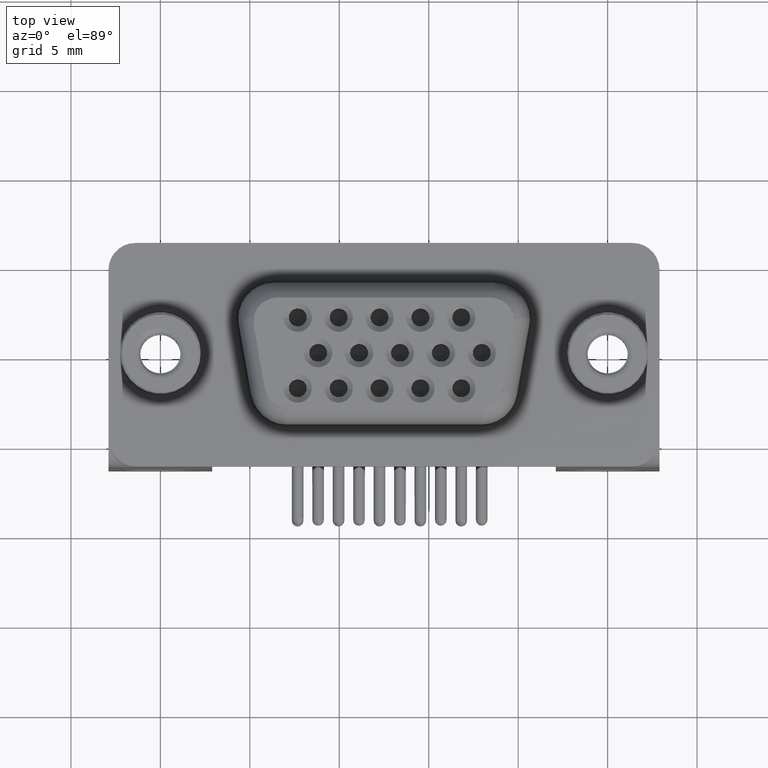
[diagram: clean part render]
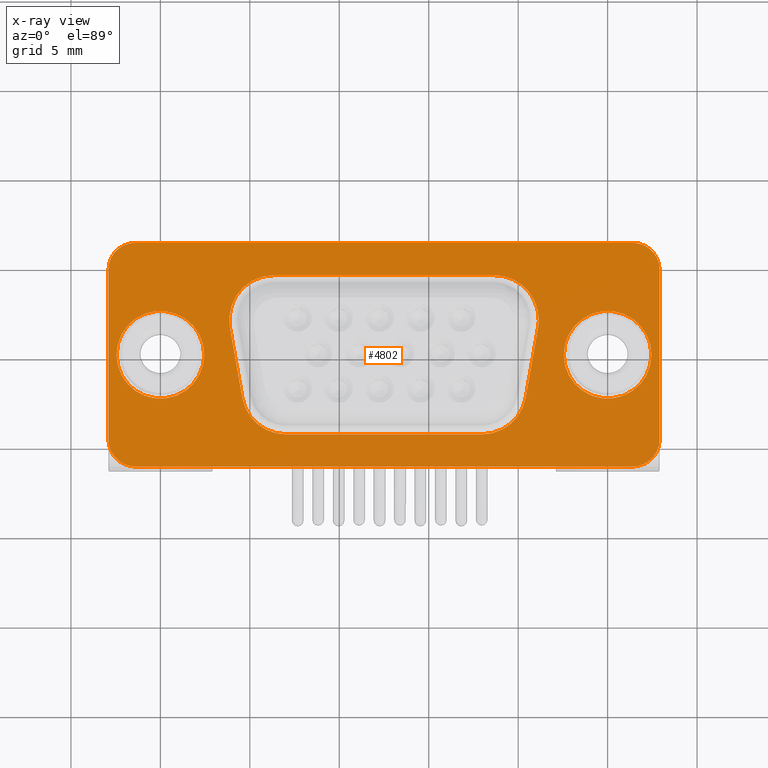
[diagram: x-ray — body ghosted, one internal face saturated and labeled with its STEP entity id]
A machine part, top view, then the same camera in x-ray: the body is ghosted and one INTERNAL B-rep face — a face not visible from any outside direction — is saturated and labeled: STEP entity #4802.
In plain terms, the highlighted planar face has unit normal (0, 0, 1).
Its self-contained STEP definition (entity closure, byte-faithful):
#76 = VECTOR ( 'NONE', #19279, 1000.000000000000100 ) ;
#106 = DIRECTION ( 'NONE',  ( -0.0000000000000000000, -0.0000000000000000000, -1.000000000000000000 ) ) ;
#285 = CARTESIAN_POINT ( 'NONE',  ( 18.64999999999999100, 1.949999999999997700, -2.168404344971008900E-016 ) ) ;
#362 = EDGE_LOOP ( 'NONE', ( #1427, #2293 ) ) ;
#383 = EDGE_CURVE ( 'NONE', #9309, #19498, #17519, .T. ) ;
#435 = VECTOR ( 'NONE', #12010, 1000.000000000000000 ) ;
#486 = DIRECTION ( 'NONE',  ( 1.000000000000000000, 0.0000000000000000000, 0.0000000000000000000 ) ) ;
#509 = EDGE_CURVE ( 'NONE', #4650, #7100, #1769, .T. ) ;
#690 = AXIS2_PLACEMENT_3D ( 'NONE', #18150, #18005, #17842 ) ;
#988 = DIRECTION ( 'NONE',  ( -0.1736481776669233100, -0.9848077530122093500, 0.0000000000000000000 ) ) ;
#1072 = CARTESIAN_POINT ( 'NONE',  ( 3.887980617469470400, 1.515879555832688700, 0.0000000000000000000 ) ) ;
#1213 = EDGE_CURVE ( 'NONE', #12095, #21476, #18872, .T. ) ;
#1427 = ORIENTED_EDGE ( 'NONE', *, *, #15687, .F. ) ;
#1769 = CIRCLE ( 'NONE', #16362, 1.500000000000004900 ) ;
#1777 = CIRCLE ( 'NONE', #4881, 1.499999999999997800 ) ;
#1801 = CARTESIAN_POINT ( 'NONE',  ( -1.400000000000012100, -6.250000000000002700, 0.0000000000000000000 ) ) ;
#1901 = ORIENTED_EDGE ( 'NONE', *, *, #10187, .F. ) ;
#2185 = ORIENTED_EDGE ( 'NONE', *, *, #12012, .F. ) ;
#2293 = ORIENTED_EDGE ( 'NONE', *, *, #20089, .F. ) ;
#2360 = VERTEX_POINT ( 'NONE', #12873 ) ;
#2370 = CARTESIAN_POINT ( 'NONE',  ( 0.0000000000000000000, 0.0000000000000000000, 0.0000000000000000000 ) ) ;
#2533 = DIRECTION ( 'NONE',  ( 1.000000000000000000, 0.0000000000000000000, -0.0000000000000000000 ) ) ;
#2632 = CARTESIAN_POINT ( 'NONE',  ( -1.400000000000012300, 4.750000000000000900, 0.0000000000000000000 ) ) ;
#2678 = EDGE_CURVE ( 'NONE', #20590, #2360, #20074, .T. ) ;
#2681 = DIRECTION ( 'NONE',  ( -0.0000000000000000000, -0.0000000000000000000, -1.000000000000000000 ) ) ;
#2760 = DIRECTION ( 'NONE',  ( 0.0000000000000000000, 0.0000000000000000000, 1.000000000000000000 ) ) ;
#2798 = EDGE_LOOP ( 'NONE', ( #9909, #5777, #12975, #15372, #1901, #7375, #21812, #14042 ) ) ;
#3211 = VERTEX_POINT ( 'NONE', #1072 ) ;
#3217 = VERTEX_POINT ( 'NONE', #4678 ) ;
#3331 = CIRCLE ( 'NONE', #13359, 2.499999999999998700 ) ;
#3720 = CARTESIAN_POINT ( 'NONE',  ( 26.39999999999999900, 6.250000000000002700, 0.0000000000000000000 ) ) ;
#3843 = AXIS2_PLACEMENT_3D ( 'NONE', #16599, #6016, #18360 ) ;
#3994 = VECTOR ( 'NONE', #18682, 1000.000000000000000 ) ;
#3997 = FACE_BOUND ( 'NONE', #17601, .T. ) ;
#4154 = EDGE_CURVE ( 'NONE', #15378, #4363, #6237, .T. ) ;
#4165 = DIRECTION ( 'NONE',  ( 1.000000000000000000, 0.0000000000000000000, 0.0000000000000000000 ) ) ;
#4303 = EDGE_CURVE ( 'NONE', #7100, #12894, #8162, .T. ) ;
#4329 = EDGE_CURVE ( 'NONE', #12894, #9309, #7044, .T. ) ;
#4363 = VERTEX_POINT ( 'NONE', #14171 ) ;
#4405 = CARTESIAN_POINT ( 'NONE',  ( 17.96232477523700800, -1.950000000000002800, -2.168404344971008900E-016 ) ) ;
#4426 = DIRECTION ( 'NONE',  ( 1.000000000000000000, 0.0000000000000000000, 0.0000000000000000000 ) ) ;
#4579 = FACE_OUTER_BOUND ( 'NONE', #2798, .T. ) ;
#4650 = VERTEX_POINT ( 'NONE', #9618 ) ;
#4678 = CARTESIAN_POINT ( 'NONE',  ( 6.349999999999990800, 4.449999999999997500, 0.0000000000000000000 ) ) ;
#4765 = LINE ( 'NONE', #5730, #8878 ) ;
#4802 = ADVANCED_FACE ( 'NONE', ( #18069, #3997, #4579, #17523 ), #5482, .F. ) ;
#4881 = AXIS2_PLACEMENT_3D ( 'NONE', #20733, #10150, #22510 ) ;
#4888 = CIRCLE ( 'NONE', #20833, 2.449999999999999700 ) ;
#4889 = CARTESIAN_POINT ( 'NONE',  ( 2.449999999999999700, 0.0000000000000000000, 0.0000000000000000000 ) ) ;
#4905 = EDGE_CURVE ( 'NONE', #3211, #3217, #11174, .T. ) ;
#5173 = CARTESIAN_POINT ( 'NONE',  ( 4.575655842232457400, -2.384120444167311600, -4.336808689942017700E-016 ) ) ;
#5482 = PLANE ( 'NONE',  #22724 ) ;
#5636 = ORIENTED_EDGE ( 'NONE', *, *, #2678, .F. ) ;
#5730 = CARTESIAN_POINT ( 'NONE',  ( 26.39999999999999900, -4.450000000000002800, 0.0000000000000000000 ) ) ;
#5777 = ORIENTED_EDGE ( 'NONE', *, *, #4303, .F. ) ;
#6016 = DIRECTION ( 'NONE',  ( -0.0000000000000000000, -0.0000000000000000000, -1.000000000000000000 ) ) ;
#6095 = CIRCLE ( 'NONE', #19039, 2.449999999999997500 ) ;
#6127 = DIRECTION ( 'NONE',  ( 1.000000000000000000, 0.0000000000000000000, -0.0000000000000000000 ) ) ;
#6165 = CARTESIAN_POINT ( 'NONE',  ( 4.575655842232455600, -2.384120444167311600, 0.0000000000000000000 ) ) ;
#6174 = DIRECTION ( 'NONE',  ( 1.000000000000000000, 8.673617379884040400E-016, 0.0000000000000000000 ) ) ;
#6237 = LINE ( 'NONE', #9880, #435 ) ;
#6731 = CARTESIAN_POINT ( 'NONE',  ( 27.44999999999999900, 4.592425496802575200E-015, 0.0000000000000000000 ) ) ;
#6971 = VERTEX_POINT ( 'NONE', #6731 ) ;
#7044 = CIRCLE ( 'NONE', #690, 1.499999999999997800 ) ;
#7100 = VERTEX_POINT ( 'NONE', #11918 ) ;
#7307 = LINE ( 'NONE', #11458, #21404 ) ;
#7375 = ORIENTED_EDGE ( 'NONE', *, *, #4154, .F. ) ;
#7592 = CARTESIAN_POINT ( 'NONE',  ( 20.42434415776753200, -2.384120444167311600, 0.0000000000000000000 ) ) ;
#7922 = VERTEX_POINT ( 'NONE', #1801 ) ;
#8070 = CARTESIAN_POINT ( 'NONE',  ( 7.037675224762979000, -1.950000000000002800, -2.168404344971008900E-016 ) ) ;
#8119 = DIRECTION ( 'NONE',  ( -0.0000000000000000000, -0.0000000000000000000, -1.000000000000000000 ) ) ;
#8162 = LINE ( 'NONE', #9525, #17012 ) ;
#8247 = CARTESIAN_POINT ( 'NONE',  ( 22.55000000000000400, 4.892463962593676000E-015, 0.0000000000000000000 ) ) ;
#8357 = ORIENTED_EDGE ( 'NONE', *, *, #17035, .F. ) ;
#8878 = VECTOR ( 'NONE', #18068, 1000.000000000000000 ) ;
#8924 = CARTESIAN_POINT ( 'NONE',  ( 26.39999999999999900, 4.750000000000004400, 0.0000000000000000000 ) ) ;
#9249 = LINE ( 'NONE', #21104, #22239 ) ;
#9309 = VERTEX_POINT ( 'NONE', #3720 ) ;
#9425 = CIRCLE ( 'NONE', #21555, 2.449999999999999700 ) ;
#9525 = CARTESIAN_POINT ( 'NONE',  ( 27.89999999999999500, -4.749999999999998200, 0.0000000000000000000 ) ) ;
#9530 = EDGE_CURVE ( 'NONE', #19498, #15378, #16450, .T. ) ;
#9618 = CARTESIAN_POINT ( 'NONE',  ( 26.39999999999998400, -6.250000000000001800, 0.0000000000000000000 ) ) ;
#9880 = CARTESIAN_POINT ( 'NONE',  ( -2.900000000000006600, -4.750000000000001800, 0.0000000000000000000 ) ) ;
#9909 = ORIENTED_EDGE ( 'NONE', *, *, #4329, .F. ) ;
#10150 = DIRECTION ( 'NONE',  ( 0.0000000000000000000, 0.0000000000000000000, 1.000000000000000000 ) ) ;
#10152 = ORIENTED_EDGE ( 'NONE', *, *, #1213, .F. ) ;
#10187 = EDGE_CURVE ( 'NONE', #4363, #7922, #1777, .T. ) ;
#10452 = AXIS2_PLACEMENT_3D ( 'NONE', #16786, #16717, #16473 ) ;
#10480 = ORIENTED_EDGE ( 'NONE', *, *, #13034, .F. ) ;
#10637 = CARTESIAN_POINT ( 'NONE',  ( 18.64999999999999100, 1.949999999999997700, -2.168404344971008900E-016 ) ) ;
#10882 = ORIENTED_EDGE ( 'NONE', *, *, #4905, .F. ) ;
#10924 = ORIENTED_EDGE ( 'NONE', *, *, #16423, .F. ) ;
#11030 = ORIENTED_EDGE ( 'NONE', *, *, #15680, .F. ) ;
#11054 = DIRECTION ( 'NONE',  ( -0.0000000000000000000, -0.0000000000000000000, -1.000000000000000000 ) ) ;
#11174 = CIRCLE ( 'NONE', #10452, 2.499999999999999600 ) ;
#11458 = CARTESIAN_POINT ( 'NONE',  ( 26.39999999999999900, 4.449999999999997500, 0.0000000000000000000 ) ) ;
#11918 = CARTESIAN_POINT ( 'NONE',  ( 27.89999999999999500, -4.749999999999998200, 0.0000000000000000000 ) ) ;
#12010 = DIRECTION ( 'NONE',  ( -0.0000000000000000000, -1.000000000000000000, -0.0000000000000000000 ) ) ;
#12012 = EDGE_CURVE ( 'NONE', #21476, #3211, #18834, .T. ) ;
#12095 = VERTEX_POINT ( 'NONE', #21283 ) ;
#12137 = CARTESIAN_POINT ( 'NONE',  ( 27.89999999999999500, 4.750000000000004400, 0.0000000000000000000 ) ) ;
#12323 = DIRECTION ( 'NONE',  ( 0.0000000000000000000, 1.000000000000000000, 0.0000000000000000000 ) ) ;
#12380 = DIRECTION ( 'NONE',  ( 1.000000000000000000, 1.560003125878423900E-016, -0.0000000000000000000 ) ) ;
#12440 = DIRECTION ( 'NONE',  ( 1.000000000000000000, 0.0000000000000000000, 0.0000000000000000000 ) ) ;
#12765 = DIRECTION ( 'NONE',  ( 0.0000000000000000000, 0.0000000000000000000, 1.000000000000000000 ) ) ;
#12873 = CARTESIAN_POINT ( 'NONE',  ( 21.11201938253051600, 1.515879555832688700, -2.168404344971008900E-016 ) ) ;
#12894 = VERTEX_POINT ( 'NONE', #12137 ) ;
#12975 = ORIENTED_EDGE ( 'NONE', *, *, #509, .F. ) ;
#13034 = EDGE_CURVE ( 'NONE', #17840, #20590, #3331, .T. ) ;
#13140 = CIRCLE ( 'NONE', #3843, 2.449999999999997500 ) ;
#13192 = CARTESIAN_POINT ( 'NONE',  ( 26.39999999999998400, -4.749999999999998200, 0.0000000000000000000 ) ) ;
#13247 = CARTESIAN_POINT ( 'NONE',  ( 25.00000000000000000, 4.592425496802575200E-015, 0.0000000000000000000 ) ) ;
#13359 = AXIS2_PLACEMENT_3D ( 'NONE', #10637, #106, #12440 ) ;
#13426 = ORIENTED_EDGE ( 'NONE', *, *, #20117, .F. ) ;
#13456 = VERTEX_POINT ( 'NONE', #8247 ) ;
#13946 = DIRECTION ( 'NONE',  ( 1.000000000000000000, 0.0000000000000000000, 0.0000000000000000000 ) ) ;
#14042 = ORIENTED_EDGE ( 'NONE', *, *, #383, .F. ) ;
#14171 = CARTESIAN_POINT ( 'NONE',  ( -2.900000000000010100, -4.750000000000001800, 0.0000000000000000000 ) ) ;
#14464 = AXIS2_PLACEMENT_3D ( 'NONE', #2632, #14998, #4426 ) ;
#14474 = CARTESIAN_POINT ( 'NONE',  ( 21.14999999999999100, 1.949999999999997700, -2.168404344971008900E-016 ) ) ;
#14663 = EDGE_LOOP ( 'NONE', ( #19875, #13426 ) ) ;
#14743 = DIRECTION ( 'NONE',  ( -0.0000000000000000000, -0.0000000000000000000, -1.000000000000000000 ) ) ;
#14872 = ORIENTED_EDGE ( 'NONE', *, *, #19840, .F. ) ;
#14912 = LINE ( 'NONE', #22155, #20137 ) ;
#14998 = DIRECTION ( 'NONE',  ( 0.0000000000000000000, 0.0000000000000000000, 1.000000000000000000 ) ) ;
#15050 = DIRECTION ( 'NONE',  ( 1.000000000000000000, 0.0000000000000000000, 0.0000000000000000000 ) ) ;
#15134 = VERTEX_POINT ( 'NONE', #7592 ) ;
#15372 = ORIENTED_EDGE ( 'NONE', *, *, #21014, .F. ) ;
#15378 = VERTEX_POINT ( 'NONE', #18928 ) ;
#15680 = EDGE_CURVE ( 'NONE', #22303, #12095, #4765, .T. ) ;
#15687 = EDGE_CURVE ( 'NONE', #18421, #18966, #9425, .T. ) ;
#15708 = CARTESIAN_POINT ( 'NONE',  ( -1.400000000000012600, 6.249999999999997300, 0.0000000000000000000 ) ) ;
#16040 = CIRCLE ( 'NONE', #17841, 2.499999999999998700 ) ;
#16220 = AXIS2_PLACEMENT_3D ( 'NONE', #8070, #20486, #13946 ) ;
#16260 = AXIS2_PLACEMENT_3D ( 'NONE', #285, #8119, #22572 ) ;
#16362 = AXIS2_PLACEMENT_3D ( 'NONE', #13192, #12765, #18558 ) ;
#16423 = EDGE_CURVE ( 'NONE', #15134, #22303, #16040, .T. ) ;
#16431 = EDGE_CURVE ( 'NONE', #6971, #13456, #6095, .T. ) ;
#16450 = CIRCLE ( 'NONE', #14464, 1.499999999999996900 ) ;
#16473 = DIRECTION ( 'NONE',  ( 1.000000000000000000, 0.0000000000000000000, 0.0000000000000000000 ) ) ;
#16599 = CARTESIAN_POINT ( 'NONE',  ( 25.00000000000000000, 4.592425496802575200E-015, 0.0000000000000000000 ) ) ;
#16717 = DIRECTION ( 'NONE',  ( -0.0000000000000000000, -0.0000000000000000000, -1.000000000000000000 ) ) ;
#16752 = DIRECTION ( 'NONE',  ( -0.0000000000000000000, -0.0000000000000000000, -1.000000000000000000 ) ) ;
#16786 = CARTESIAN_POINT ( 'NONE',  ( 6.349999999999991700, 1.949999999999997700, -2.168404344971008900E-016 ) ) ;
#17012 = VECTOR ( 'NONE', #12323, 1000.000000000000000 ) ;
#17035 = EDGE_CURVE ( 'NONE', #2360, #15134, #14912, .T. ) ;
#17233 = CARTESIAN_POINT ( 'NONE',  ( 17.96232477523700800, -4.450000000000002800, 0.0000000000000000000 ) ) ;
#17519 = LINE ( 'NONE', #18702, #3994 ) ;
#17523 = FACE_BOUND ( 'NONE', #362, .T. ) ;
#17601 = EDGE_LOOP ( 'NONE', ( #2185, #10152, #11030, #10924, #8357, #5636, #10480, #14872, #10882 ) ) ;
#17840 = VERTEX_POINT ( 'NONE', #22790 ) ;
#17841 = AXIS2_PLACEMENT_3D ( 'NONE', #4405, #16752, #6174 ) ;
#17842 = DIRECTION ( 'NONE',  ( 1.000000000000000000, 0.0000000000000000000, 0.0000000000000000000 ) ) ;
#18005 = DIRECTION ( 'NONE',  ( 0.0000000000000000000, 0.0000000000000000000, 1.000000000000000000 ) ) ;
#18068 = DIRECTION ( 'NONE',  ( -1.000000000000000000, -0.0000000000000000000, 0.0000000000000000000 ) ) ;
#18069 = FACE_BOUND ( 'NONE', #14663, .T. ) ;
#18150 = CARTESIAN_POINT ( 'NONE',  ( 26.39999999999999900, 4.750000000000004400, 0.0000000000000000000 ) ) ;
#18360 = DIRECTION ( 'NONE',  ( 1.000000000000000000, 0.0000000000000000000, 0.0000000000000000000 ) ) ;
#18421 = VERTEX_POINT ( 'NONE', #4889 ) ;
#18558 = DIRECTION ( 'NONE',  ( 1.000000000000000000, 0.0000000000000000000, 0.0000000000000000000 ) ) ;
#18682 = DIRECTION ( 'NONE',  ( -1.000000000000000000, -9.360018755270537300E-017, 0.0000000000000000000 ) ) ;
#18702 = CARTESIAN_POINT ( 'NONE',  ( 26.39999999999999900, 6.250000000000002700, 0.0000000000000000000 ) ) ;
#18834 = LINE ( 'NONE', #5173, #76 ) ;
#18872 = CIRCLE ( 'NONE', #16220, 2.500000000000000400 ) ;
#18928 = CARTESIAN_POINT ( 'NONE',  ( -2.900000000000006600, 4.750000000000000900, 0.0000000000000000000 ) ) ;
#18966 = VERTEX_POINT ( 'NONE', #21276 ) ;
#19039 = AXIS2_PLACEMENT_3D ( 'NONE', #13247, #2681, #15050 ) ;
#19279 = DIRECTION ( 'NONE',  ( -0.1736481776669237000, 0.9848077530122092400, -0.0000000000000000000 ) ) ;
#19498 = VERTEX_POINT ( 'NONE', #15708 ) ;
#19840 = EDGE_CURVE ( 'NONE', #3217, #17840, #7307, .T. ) ;
#19875 = ORIENTED_EDGE ( 'NONE', *, *, #16431, .F. ) ;
#20074 = CIRCLE ( 'NONE', #16260, 2.499999999999998700 ) ;
#20089 = EDGE_CURVE ( 'NONE', #18966, #18421, #4888, .T. ) ;
#20117 = EDGE_CURVE ( 'NONE', #13456, #6971, #13140, .T. ) ;
#20137 = VECTOR ( 'NONE', #988, 999.9999999999998900 ) ;
#20486 = DIRECTION ( 'NONE',  ( -0.0000000000000000000, -0.0000000000000000000, -1.000000000000000000 ) ) ;
#20590 = VERTEX_POINT ( 'NONE', #14474 ) ;
#20733 = CARTESIAN_POINT ( 'NONE',  ( -1.400000000000012300, -4.750000000000001800, 0.0000000000000000000 ) ) ;
#20833 = AXIS2_PLACEMENT_3D ( 'NONE', #2370, #14743, #4165 ) ;
#21014 = EDGE_CURVE ( 'NONE', #7922, #4650, #9249, .T. ) ;
#21104 = CARTESIAN_POINT ( 'NONE',  ( 26.39999999999998400, -6.249999999999998200, 0.0000000000000000000 ) ) ;
#21276 = CARTESIAN_POINT ( 'NONE',  ( -2.449999999999999700, 3.000384657911015400E-016, 0.0000000000000000000 ) ) ;
#21283 = CARTESIAN_POINT ( 'NONE',  ( 7.037675224762979000, -4.450000000000002800, 0.0000000000000000000 ) ) ;
#21404 = VECTOR ( 'NONE', #6127, 1000.000000000000000 ) ;
#21476 = VERTEX_POINT ( 'NONE', #6165 ) ;
#21555 = AXIS2_PLACEMENT_3D ( 'NONE', #21641, #11054, #486 ) ;
#21641 = CARTESIAN_POINT ( 'NONE',  ( 0.0000000000000000000, 0.0000000000000000000, 0.0000000000000000000 ) ) ;
#21812 = ORIENTED_EDGE ( 'NONE', *, *, #9530, .F. ) ;
#22155 = CARTESIAN_POINT ( 'NONE',  ( 21.11201938253052300, 1.515879555832687600, -4.336808689942017700E-016 ) ) ;
#22239 = VECTOR ( 'NONE', #12380, 1000.000000000000000 ) ;
#22303 = VERTEX_POINT ( 'NONE', #17233 ) ;
#22510 = DIRECTION ( 'NONE',  ( -1.000000000000000000, 0.0000000000000000000, 0.0000000000000000000 ) ) ;
#22572 = DIRECTION ( 'NONE',  ( 1.000000000000000000, 0.0000000000000000000, 0.0000000000000000000 ) ) ;
#22724 = AXIS2_PLACEMENT_3D ( 'NONE', #8924, #2760, #2533 ) ;
#22790 = CARTESIAN_POINT ( 'NONE',  ( 18.64999999999999100, 4.449999999999997500, 0.0000000000000000000 ) ) ;